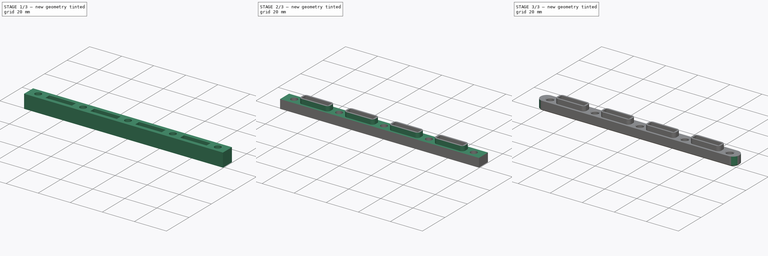
[diagram: build sequence overview — one tinted view per stage of 3, left to right]
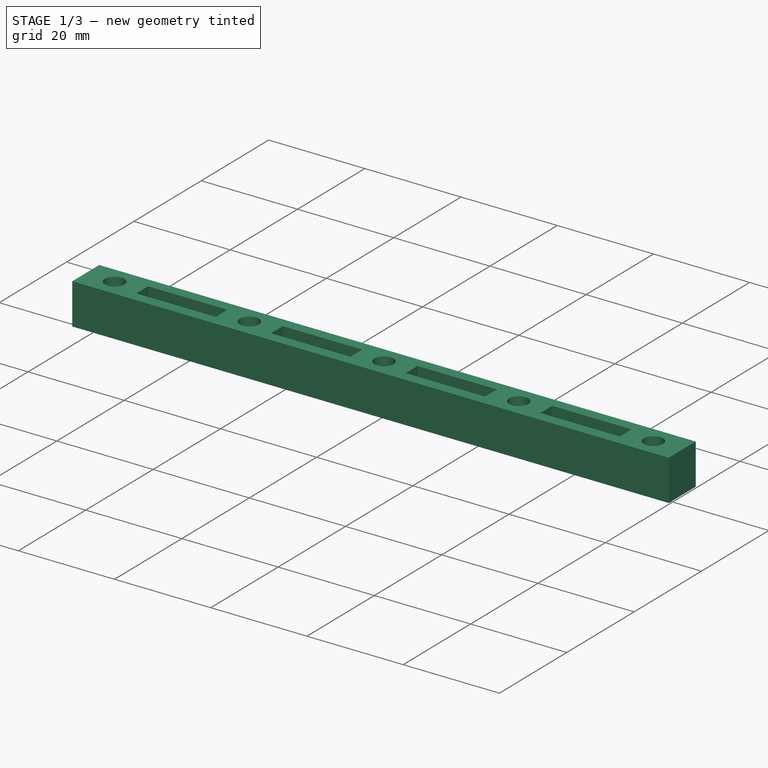
[diagram: stage 1 of 3 — iso view after this stage's code; geometry added in this stage tinted green]
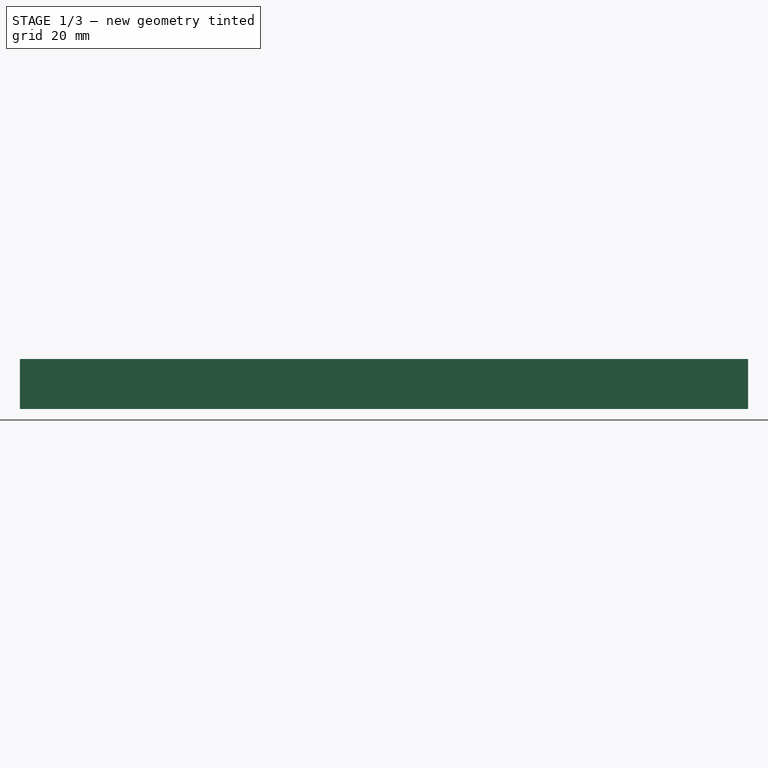
[diagram: stage 1 of 3 — front view after this stage's code; geometry added in this stage tinted green]
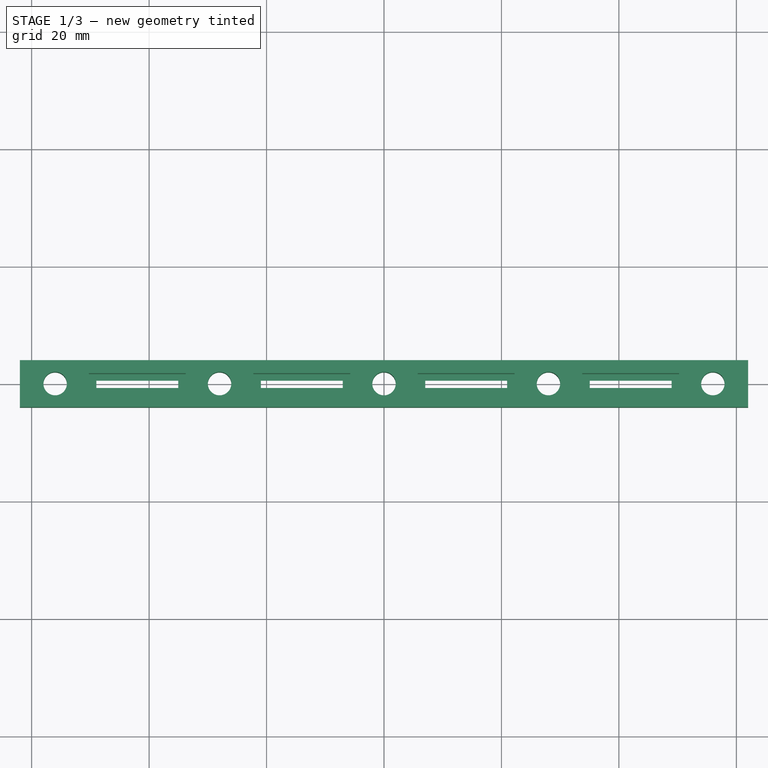
[diagram: stage 1 of 3 — top view after this stage's code; geometry added in this stage tinted green]
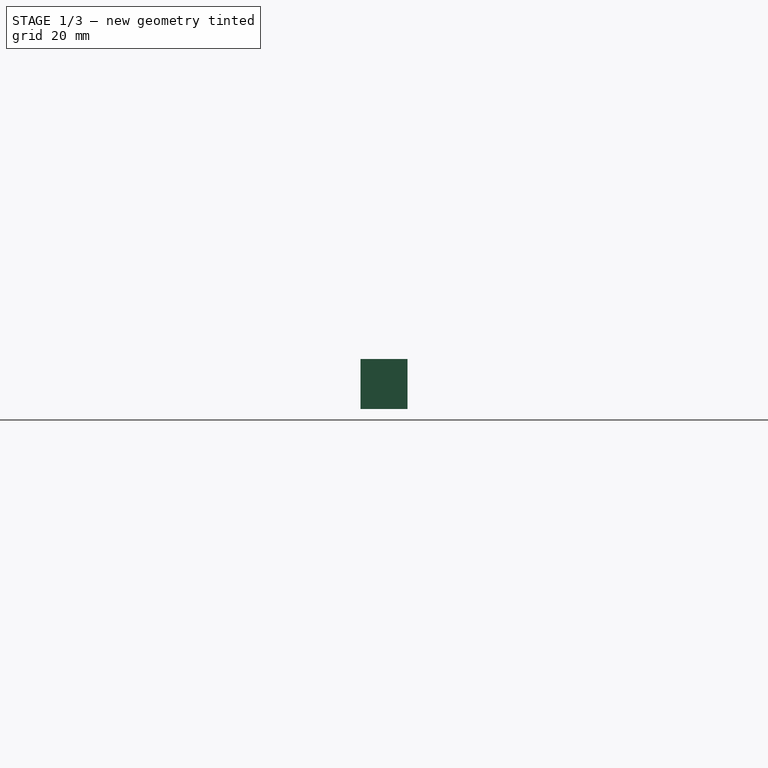
[diagram: stage 1 of 3 — right view after this stage's code; geometry added in this stage tinted green]
FCSTD DOCUMENT  (FreeCAD 0.19R23141 (Git))
Label: serial-connector
License: All rights reserved
LicenseURL: http://en.wikipedia.org/wiki/All_rights_reserved
objects: Sketcher::SketchObject×3, PartDesign::Pocket×2, PartDesign::Fillet×2, PartDesign::Pad×1, PartDesign::Chamfer×1, PartDesign::Body×1
note: 16 computed .brp shape members not serialized (recipe doc carries the construction recipe); baked Part::Feature solids carry a one-line shape summary decoded from their .brp

FEATURE [Sketcher::SketchObject] Sketch
  MapMode = 5
  Support = -> [XY_Plane]
  sketch-geometry (31):
    g0: Circle CenterX=0 CenterY=0 CenterZ=0 NormalX=0 NormalY=0 NormalZ=1 AngleXU=0 Radius=2
    g1: Circle CenterX=-28 CenterY=0 CenterZ=0 NormalX=0 NormalY=0 NormalZ=1 AngleXU=0 Radius=2
    g2: Circle CenterX=-56 CenterY=0 CenterZ=0 NormalX=0 NormalY=0 NormalZ=1 AngleXU=0 Radius=2
    g3: Circle CenterX=28 CenterY=0 CenterZ=0 NormalX=0 NormalY=0 NormalZ=1 AngleXU=0 Radius=2
    g4: Circle CenterX=56 CenterY=0 CenterZ=0 NormalX=0 NormalY=0 NormalZ=1 AngleXU=0 Radius=2
    g5: LineSegment StartX=-48.975 StartY=0.625 StartZ=0 EndX=-35.025 EndY=0.625 EndZ=0
    g6: LineSegment StartX=-35.025 StartY=0.625 StartZ=0 EndX=-35.025 EndY=-0.625 EndZ=0
    g7: LineSegment StartX=-35.025 StartY=-0.625 StartZ=0 EndX=-48.975 EndY=-0.625 EndZ=0
    g8: LineSegment StartX=-48.975 StartY=-0.625 StartZ=0 EndX=-48.975 EndY=0.625 EndZ=0
    g9: LineSegment StartX=-20.975 StartY=0.625 StartZ=0 EndX=-7.025 EndY=0.625 EndZ=0
    g10: LineSegment StartX=-7.025 StartY=0.625 StartZ=0 EndX=-7.025 EndY=-0.625 EndZ=0
    g11: LineSegment StartX=-7.025 StartY=-0.625 StartZ=0 EndX=-20.975 EndY=-0.625 EndZ=0
    g12: LineSegment StartX=-20.975 StartY=-0.625 StartZ=0 EndX=-20.975 EndY=0.625 EndZ=0
    g13: LineSegment StartX=7.025 StartY=0.625 StartZ=0 EndX=20.975 EndY=0.625 EndZ=0
    g14: LineSegment StartX=20.975 StartY=0.625 StartZ=0 EndX=20.975 EndY=-0.625 EndZ=0
    g15: LineSegment StartX=20.975 StartY=-0.625 StartZ=0 EndX=7.025 EndY=-0.625 EndZ=0
    g16: LineSegment StartX=7.025 StartY=-0.625 StartZ=0 EndX=7.025 EndY=0.625 EndZ=0
    g17: LineSegment StartX=35.025 StartY=0.625 StartZ=0 EndX=48.975 EndY=0.625 EndZ=0
    g18: LineSegment StartX=48.975 StartY=0.625 StartZ=0 EndX=48.975 EndY=-0.625 EndZ=0
    g19: LineSegment StartX=48.975 StartY=-0.625 StartZ=0 EndX=35.025 EndY=-0.625 EndZ=0
    g20: LineSegment StartX=35.025 StartY=-0.625 StartZ=0 EndX=35.025 EndY=0.625 EndZ=0
    g21: LineSegment [constr] StartX=-56 StartY=0 StartZ=0 EndX=-28 EndY=0 EndZ=0
    g22: LineSegment [constr] StartX=-28 StartY=0 StartZ=0 EndX=0 EndY=0 EndZ=0
    g23: LineSegment [constr] StartX=0 StartY=0 StartZ=0 EndX=28 EndY=0 EndZ=0
    g24: LineSegment [constr] StartX=28 StartY=0 StartZ=0 EndX=56 EndY=0 EndZ=0
    g25: LineSegment [constr] StartX=-14 StartY=-0.625 StartZ=0 EndX=-14 EndY=0.625 EndZ=0
    g26: LineSegment [constr] StartX=-42 StartY=-0.625 StartZ=0 EndX=-42 EndY=0.625 EndZ=0
    g27: LineSegment StartX=-62 StartY=4 StartZ=0 EndX=62 EndY=4 EndZ=0
    g28: LineSegment StartX=62 StartY=4 StartZ=0 EndX=62 EndY=-4 EndZ=0
    g29: LineSegment StartX=62 StartY=-4 StartZ=0 EndX=-62 EndY=-4 EndZ=0
    g30: LineSegment StartX=-62 StartY=-4 StartZ=0 EndX=-62 EndY=4 EndZ=0
  constraints (82):
    c: Coincident(g0,g-1)
    c: PointOnObject(g1,g-1)
    c: PointOnObject(g2,g-1)
    c: PointOnObject(g3,g-1)
    c: PointOnObject(g4,g-1)
    c: Coincident(g5,g6)
    c: Coincident(g6,g7)
    c: Coincident(g7,g8)
    c: Coincident(g8,g5)
    c: Horizontal(g7)
    c: Vertical(g6)
    c: Coincident(g9,g10)
    c: Coincident(g10,g11)
    c: Coincident(g11,g12)
    c: Coincident(g12,g9)
    c: Horizontal(g11)
    c: Vertical(g10)
    c: Vertical(g12)
    c: Coincident(g13,g14)
    c: Coincident(g14,g15)
    c: Coincident(g15,g16)
    c: Coincident(g16,g13)
    c: Horizontal(g13)
    c: Horizontal(g15)
    c: Vertical(g14)
    c: Vertical(g16)
    c: Coincident(g17,g18)
    c: Coincident(g18,g19)
    c: Coincident(g19,g20)
    c: Coincident(g20,g17)
    c: Horizontal(g17)
    c: Horizontal(g19)
    c: Vertical(g18)
    c: Vertical(g20)
    c: Equal(g2,g1)
    c: Equal(g1,g0)
    c: Equal(g0,g3)
    c: Equal(g3,g4)
    c: Radius(g2) = 2
    c: DistanceX(g5,g5) = 13.95
    c: DistanceY(g8,g8) = 1.25
    c: Equal(g5,g9)
    c: Equal(g9,g13)
    c: Equal(g13,g17)
    c: Equal(g6,g12)
    c: Equal(g12,g16)
    c: Equal(g16,g20)
    c: Symmetric(g7,g5,g-1)
    c: Horizontal(g5,g9)
    c: Coincident(g21,g2)
    c: Coincident(g21,g1)
    c: Coincident(g22,g1)
    c: Coincident(g22,g0)
    c: Coincident(g23,g0)
    c: Coincident(g23,g3)
    c: Coincident(g24,g3)
    c: Coincident(g24,g4)
    c: Equal(g21,g22)
    c: Equal(g22,g23)
    c: Equal(g23,g24)
    c: DistanceX(g21,g21) = 28
    c: Symmetric(g9,g13,g-2)
    c: Symmetric(g5,g17,g-2)
    c: PointOnObject(g25,g11)
    c: PointOnObject(g25,g9)
    c: PointOnObject(g26,g7)
    c: PointOnObject(g26,g5)
    c: Symmetric(g5,g5,g26)
    c: Symmetric(g2,g1,g26)
    c: Symmetric(g1,g0,g25)
    c: Symmetric(g9,g9,g25)
    c: Coincident(g27,g28)
    c: Coincident(g28,g29)
    c: Coincident(g29,g30)
    c: Coincident(g30,g27)
    c: Horizontal(g27)
    c: Horizontal(g29)
    c: Vertical(g28)
    c: Vertical(g30)
    c: Symmetric(g27,g28,g0)
    c: DistanceY(g30,g30) = 8
    c: DistanceX(g27,g27) = 124
FEATURE [PartDesign::Pad] Pad
  Direction = (1,1,1)
  Length = 8.5
  Length2 = 100
  Profile = -> Sketch
  Refine = true
  Type = 0
FEATURE [Sketcher::SketchObject] Sketch001
  ExternalGeometry = -> [Pad]
  MapMode = 5
  Placement = pos=(0,0,8.5) rot=(0,0,1;0rad)
  Support = -> [Pad]
  sketch-geometry (18):
    g0: LineSegment StartX=-50.25 StartY=1.75 StartZ=0 EndX=-33.75 EndY=1.75 EndZ=0
    g1: LineSegment StartX=-33.75 StartY=1.75 StartZ=0 EndX=-33.75 EndY=-1.75 EndZ=0
    g2: LineSegment StartX=-33.75 StartY=-1.75 StartZ=0 EndX=-50.25 EndY=-1.75 EndZ=0
    g3: LineSegment StartX=-50.25 StartY=-1.75 StartZ=0 EndX=-50.25 EndY=1.75 EndZ=0
    g4: LineSegment StartX=-22.25 StartY=1.75 StartZ=0 EndX=-5.75 EndY=1.75 EndZ=0
    g5: LineSegment StartX=-5.75 StartY=1.75 StartZ=0 EndX=-5.75 EndY=-1.75 EndZ=0
    g6: LineSegment StartX=-5.75 StartY=-1.75 StartZ=0 EndX=-22.25 EndY=-1.75 EndZ=0
    g7: LineSegment StartX=-22.25 StartY=-1.75 StartZ=0 EndX=-22.25 EndY=1.75 EndZ=0
    g8: LineSegment StartX=5.75 StartY=1.75 StartZ=0 EndX=22.25 EndY=1.75 EndZ=0
    g9: LineSegment StartX=22.25 StartY=1.75 StartZ=0 EndX=22.25 EndY=-1.75 EndZ=0
    g10: LineSegment StartX=22.25 StartY=-1.75 StartZ=0 EndX=5.75 EndY=-1.75 EndZ=0
    g11: LineSegment StartX=5.75 StartY=-1.75 StartZ=0 EndX=5.75 EndY=1.75 EndZ=0
    g12: LineSegment StartX=33.75 StartY=1.75 StartZ=0 EndX=50.25 EndY=1.75 EndZ=0
    g13: LineSegment StartX=50.25 StartY=1.75 StartZ=0 EndX=50.25 EndY=-1.75 EndZ=0
    g14: LineSegment StartX=50.25 StartY=-1.75 StartZ=0 EndX=33.75 EndY=-1.75 EndZ=0
    g15: LineSegment StartX=33.75 StartY=-1.75 StartZ=0 EndX=33.75 EndY=1.75 EndZ=0
    g16: LineSegment [constr] StartX=-42 StartY=-1.75 StartZ=0 EndX=-42 EndY=1.75 EndZ=0
    g17: LineSegment [constr] StartX=-14 StartY=-1.75 StartZ=0 EndX=-14 EndY=1.75 EndZ=0
  constraints (49):
    c: Coincident(g0,g1)
    c: Coincident(g1,g2)
    c: Coincident(g2,g3)
    c: Coincident(g3,g0)
    c: Horizontal(g2)
    c: Vertical(g1)
    c: Vertical(g3)
    c: Coincident(g4,g5)
    c: Coincident(g5,g6)
    c: Coincident(g6,g7)
    c: Coincident(g7,g4)
    c: Horizontal(g6)
    c: Vertical(g5)
    c: Coincident(g8,g9)
    c: Coincident(g9,g10)
    c: Coincident(g10,g11)
    c: Coincident(g11,g8)
    c: Horizontal(g8)
    c: Horizontal(g10)
    c: Vertical(g9)
    c: Vertical(g11)
    c: Coincident(g12,g13)
    c: Coincident(g13,g14)
    c: Coincident(g14,g15)
    c: Coincident(g15,g12)
    c: Horizontal(g12)
    c: Horizontal(g14)
    c: Vertical(g13)
    c: Vertical(g15)
    c: Equal(g0,g4)
    c: Equal(g4,g8)
    c: Equal(g8,g12)
    c: Equal(g1,g7)
    c: Equal(g7,g11)
    c: Equal(g11,g15)
    c: Horizontal(g0,g4)
    c: Symmetric(g4,g6,g-1)
    c: Symmetric(g4,g8,g-2)
    c: Symmetric(g0,g12,g-2)
    c: PointOnObject(g16,g2)
    c: PointOnObject(g16,g0)
    c: Symmetric(g0,g0,g16)
    c: Symmetric(g-3,g-4,g16)
    c: PointOnObject(g17,g6)
    c: PointOnObject(g17,g4)
    c: Symmetric(g4,g4,g17)
    c: Symmetric(g-4,g-1,g17)
    c: DistanceX(g0,g0) = 16.5
    c: DistanceY(g3,g3) = 3.5
FEATURE [PartDesign::Pocket] Pocket
  BaseFeature = -> Pad
  Length = 8
  Length2 = 100
  Profile = -> Sketch001
  Refine = true
  Type = 0
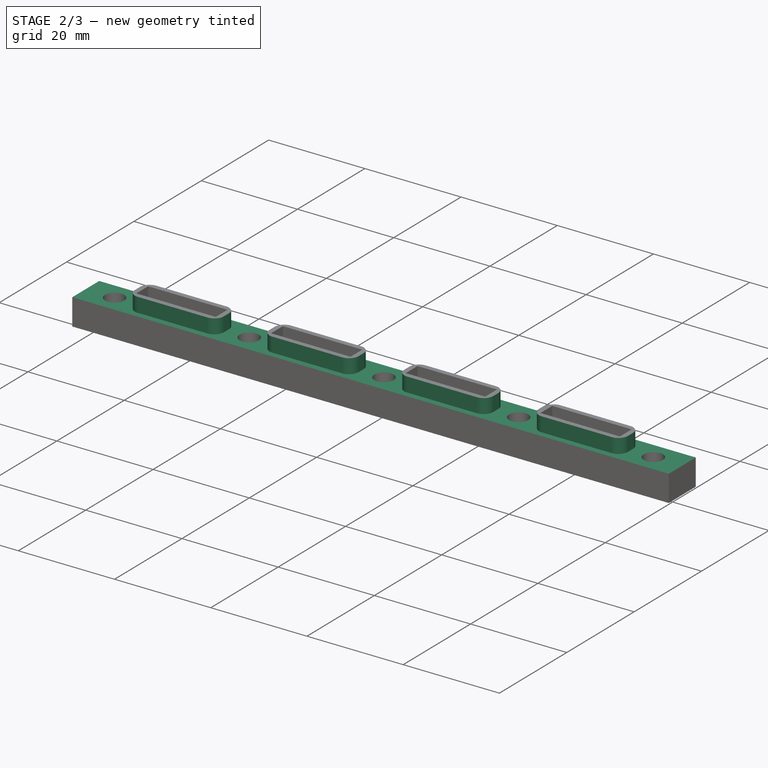
[diagram: stage 2 of 3 — iso view after this stage's code; geometry added in this stage tinted green]
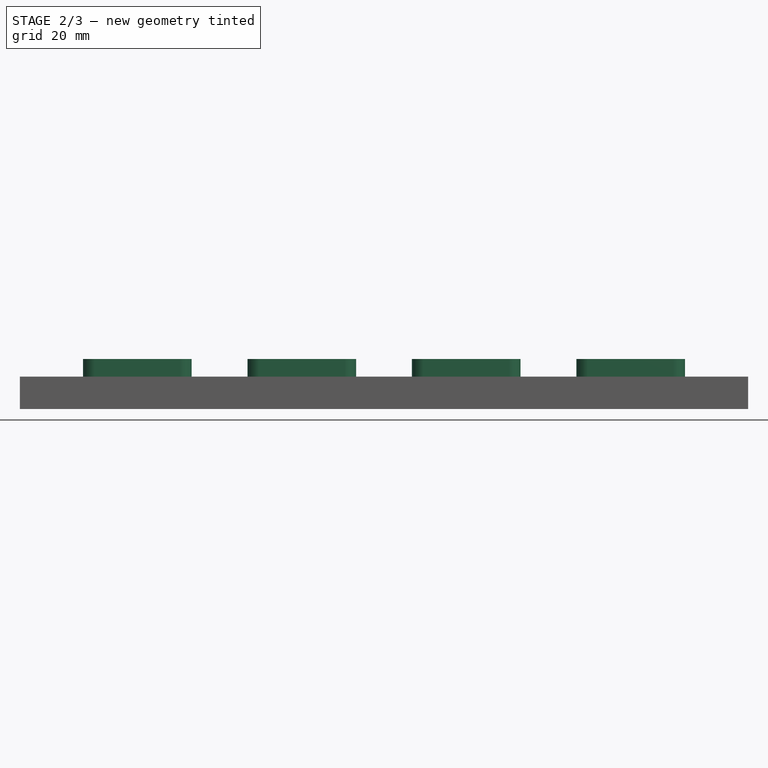
[diagram: stage 2 of 3 — front view after this stage's code; geometry added in this stage tinted green]
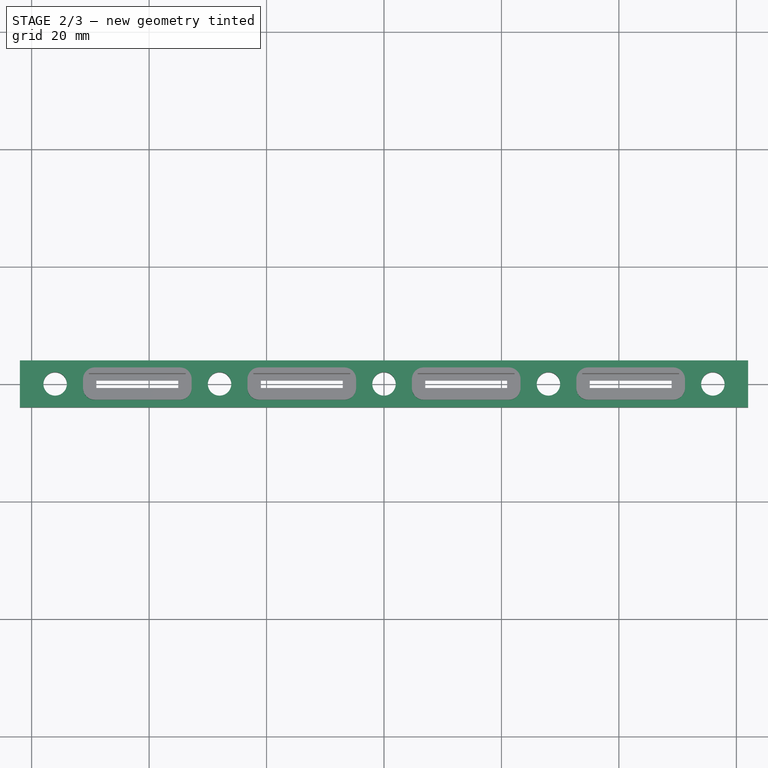
[diagram: stage 2 of 3 — top view after this stage's code; geometry added in this stage tinted green]
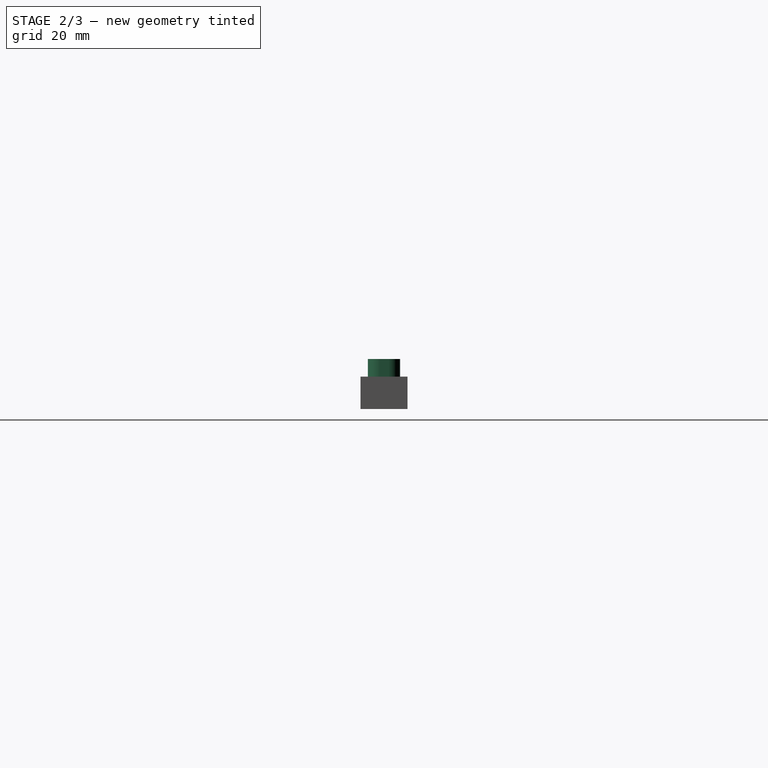
[diagram: stage 2 of 3 — right view after this stage's code; geometry added in this stage tinted green]
FEATURE [Sketcher::SketchObject] Sketch002
  ExternalGeometry = -> [Pocket]
  MapMode = 5
  Placement = pos=(0,0,8.5) rot=(0,0,1;0rad)
  Support = -> [Pocket]
  sketch-geometry (20):
    g0: LineSegment StartX=-51.25 StartY=2.75 StartZ=0 EndX=-32.75 EndY=2.75 EndZ=0
    g1: LineSegment StartX=-32.75 StartY=2.75 StartZ=0 EndX=-32.75 EndY=-2.75 EndZ=0
    g2: LineSegment StartX=-32.75 StartY=-2.75 StartZ=0 EndX=-51.25 EndY=-2.75 EndZ=0
    g3: LineSegment StartX=-51.25 StartY=-2.75 StartZ=0 EndX=-51.25 EndY=2.75 EndZ=0
    g4: LineSegment StartX=-23.25 StartY=2.75 StartZ=0 EndX=-4.75 EndY=2.75 EndZ=0
    g5: LineSegment StartX=-4.75 StartY=2.75 StartZ=0 EndX=-4.75 EndY=-2.75 EndZ=0
    g6: LineSegment StartX=-4.75 StartY=-2.75 StartZ=0 EndX=-23.25 EndY=-2.75 EndZ=0
    g7: LineSegment StartX=-23.25 StartY=-2.75 StartZ=0 EndX=-23.25 EndY=2.75 EndZ=0
    g8: LineSegment StartX=4.75 StartY=2.75 StartZ=0 EndX=23.25 EndY=2.75 EndZ=0
    g9: LineSegment StartX=23.25 StartY=2.75 StartZ=0 EndX=23.25 EndY=-2.75 EndZ=0
    g10: LineSegment StartX=23.25 StartY=-2.75 StartZ=0 EndX=4.75 EndY=-2.75 EndZ=0
    g11: LineSegment StartX=4.75 StartY=-2.75 StartZ=0 EndX=4.75 EndY=2.75 EndZ=0
    g12: LineSegment StartX=32.75 StartY=2.75 StartZ=0 EndX=51.25 EndY=2.75 EndZ=0
    g13: LineSegment StartX=51.25 StartY=2.75 StartZ=0 EndX=51.25 EndY=-2.75 EndZ=0
    g14: LineSegment StartX=51.25 StartY=-2.75 StartZ=0 EndX=32.75 EndY=-2.75 EndZ=0
    g15: LineSegment StartX=32.75 StartY=-2.75 StartZ=0 EndX=32.75 EndY=2.75 EndZ=0
    g16: LineSegment StartX=-75 StartY=20 StartZ=0 EndX=75 EndY=20 EndZ=0
    g17: LineSegment StartX=75 StartY=20 StartZ=0 EndX=75 EndY=-20 EndZ=0
    g18: LineSegment StartX=75 StartY=-20 StartZ=0 EndX=-75 EndY=-20 EndZ=0
    g19: LineSegment StartX=-75 StartY=-20 StartZ=0 EndX=-75 EndY=20 EndZ=0
  constraints (57):
    c: Coincident(g0,g1)
    c: Coincident(g1,g2)
    c: Coincident(g2,g3)
    c: Coincident(g3,g0)
    c: Horizontal(g0)
    c: Horizontal(g2)
    c: Vertical(g1)
    c: Vertical(g3)
    c: Coincident(g4,g5)
    c: Coincident(g5,g6)
    c: Coincident(g6,g7)
    c: Coincident(g7,g4)
    c: Horizontal(g4)
    c: Horizontal(g6)
    c: Vertical(g5)
    c: Vertical(g7)
    c: Coincident(g8,g9)
    c: Coincident(g9,g10)
    c: Coincident(g10,g11)
    c: Coincident(g11,g8)
    c: Horizontal(g8)
    c: Horizontal(g10)
    c: Vertical(g9)
    c: Vertical(g11)
    c: Coincident(g12,g13)
    c: Coincident(g13,g14)
    c: Coincident(g14,g15)
    c: Coincident(g15,g12)
    c: Horizontal(g12)
    c: Horizontal(g14)
    c: Vertical(g13)
    c: Vertical(g15)
    c: Coincident(g16,g17)
    c: Coincident(g17,g18)
    c: Coincident(g18,g19)
    c: Coincident(g19,g16)
    c: Horizontal(g16)
    c: Horizontal(g18)
    c: Vertical(g17)
    c: Vertical(g19)
    c: Symmetric(g16,g17,g-1)
    c: DistanceX(g16,g16) = 150
    c: DistanceY(g19,g19) = 40
    c: DistanceX(g0,g-3) = 1
    c: DistanceY(g-3,g0) = 1
    c: DistanceX(g-4,g1) = 1
    c: DistanceY(g1,g-4) = 1
    c: Horizontal(g0,g4)
    c: Symmetric(g4,g8,g-2)
    c: Symmetric(g0,g12,g-2)
    c: Equal(g0,g4)
    c: Equal(g4,g8)
    c: Equal(g8,g12)
    c: Equal(g1,g5)
    c: Equal(g5,g9)
    c: Equal(g9,g13)
    c: DistanceX(g4,g-5) = 1
FEATURE [PartDesign::Pocket] Pocket001
  BaseFeature = -> Pocket
  Length = 3
  Length2 = 100
  Profile = -> Sketch002
  Refine = true
  Type = 0
FEATURE [PartDesign::Fillet] Fillet
  Base = -> Pocket001 [Edge116,Edge119,Edge108,Edge111,Edge100,Edge103,Edge92,Edge95,Edge97,Edge93,Edge105,Edge101,Edge113,Edge109,Edge121,Edge117]
  BaseFeature = -> Pocket001
  Radius = 2
  Refine = true
  SupportTransform = false
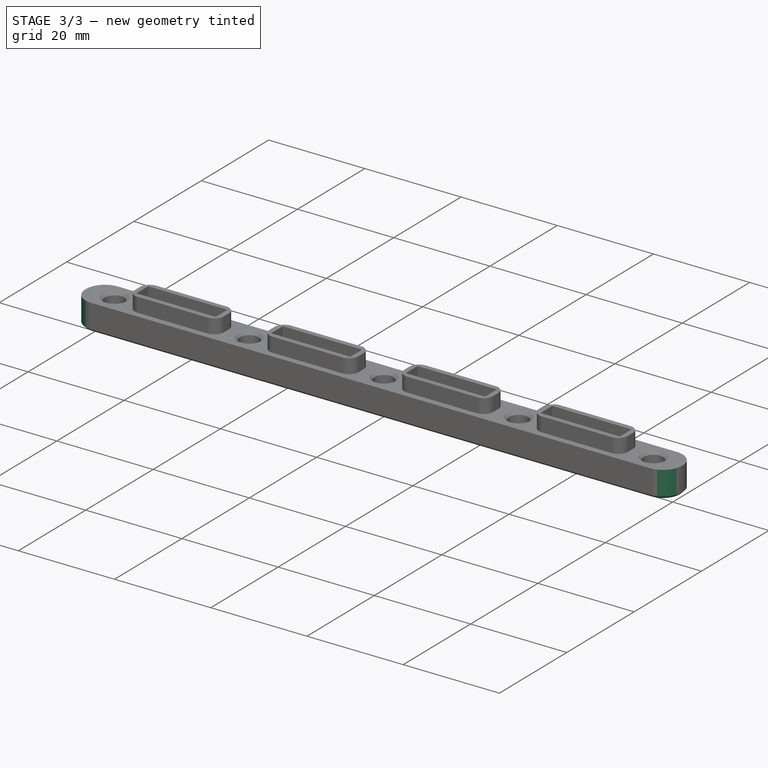
[diagram: stage 3 of 3 — iso view after this stage's code; geometry added in this stage tinted green]
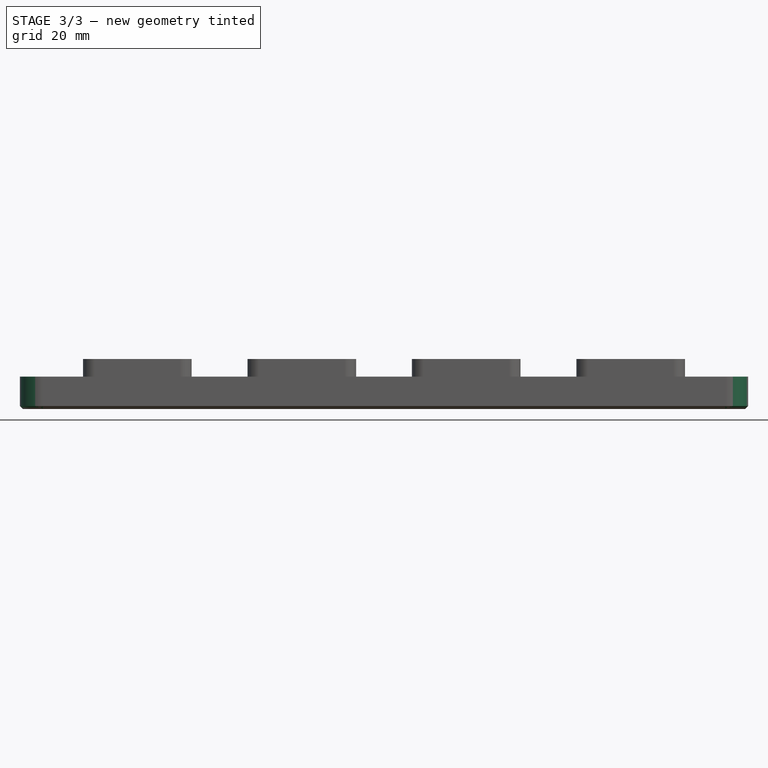
[diagram: stage 3 of 3 — front view after this stage's code; geometry added in this stage tinted green]
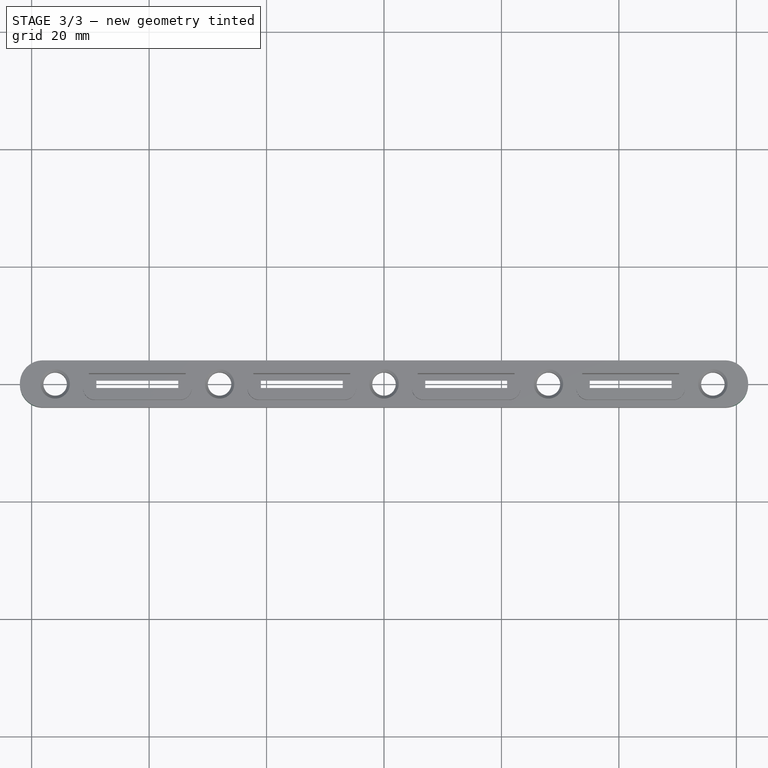
[diagram: stage 3 of 3 — top view after this stage's code; geometry added in this stage tinted green]
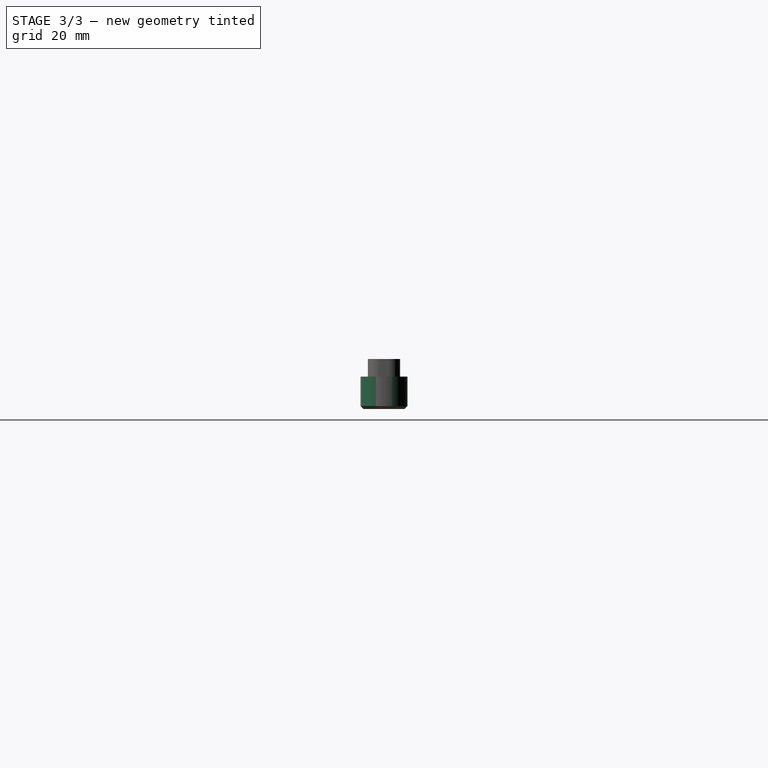
[diagram: stage 3 of 3 — right view after this stage's code; geometry added in this stage tinted green]
FEATURE [PartDesign::Fillet] Fillet001
  Base = -> Fillet [Edge62,Edge60,Edge64,Edge59]
  BaseFeature = -> Fillet
  Radius = 3.9
  Refine = true
  SupportTransform = false
FEATURE [PartDesign::Chamfer] Chamfer
  Angle = 45
  Base = -> Fillet001 [Edge61,Edge21,Edge20,Edge19,Edge18,Edge17]
  BaseFeature = -> Fillet001
  ChamferType = 0
  FlipDirection = false
  Refine = true
  Size = 0.5
  Size2 = 1
  SupportTransform = false
FEATURE [PartDesign::Body] Body
  Group = -> [Sketch,Pad,Sketch001,Pocket,Sketch002,Pocket001,Fillet,Fillet001,Chamfer]
  Origin = -> Origin
  Tip = -> Chamfer
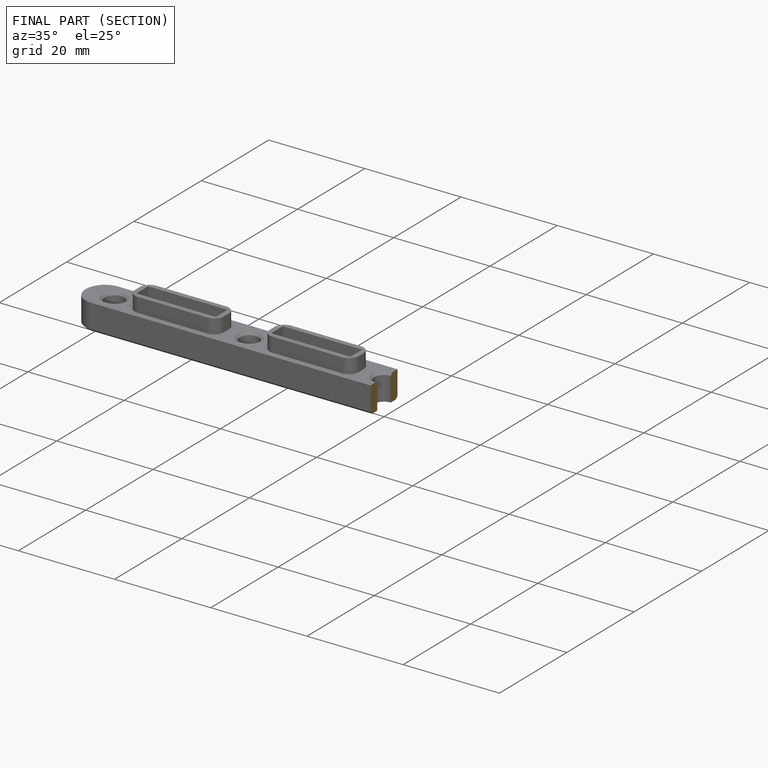
[diagram: finished part — half-section view (interior)]
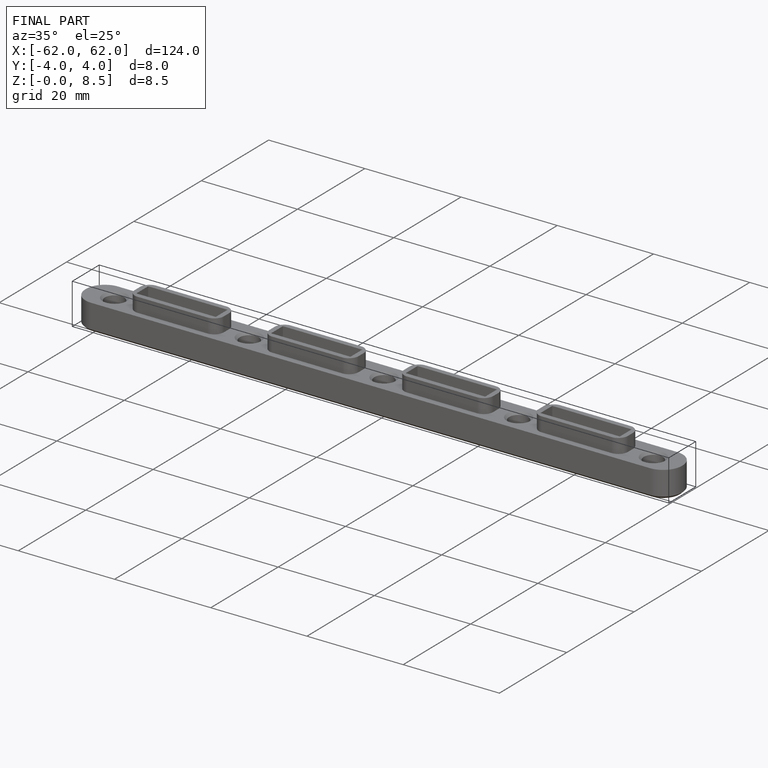
[diagram: finished part — iso view with bounding-box wireframe]
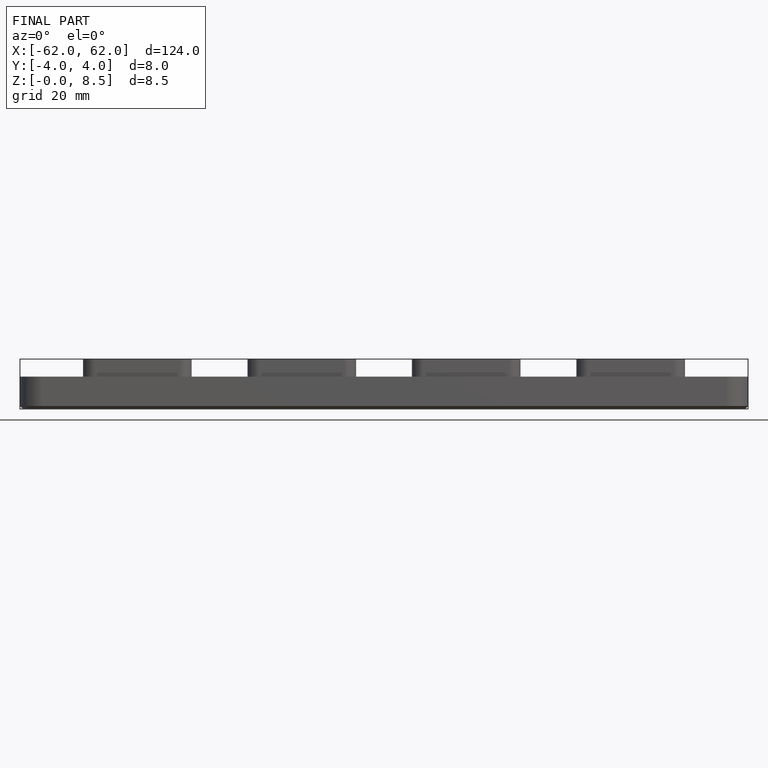
[diagram: finished part — front view with bounding-box wireframe]
